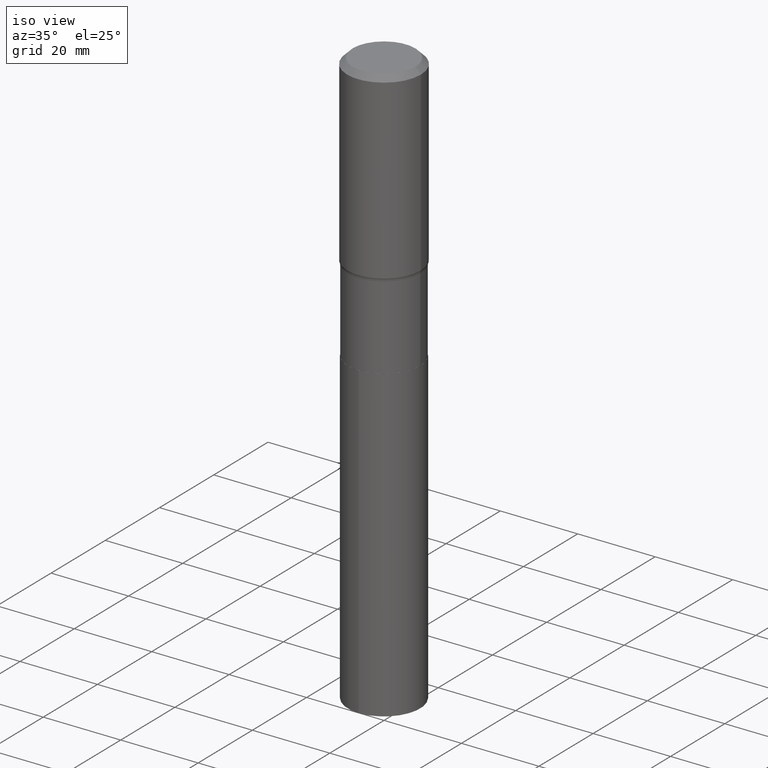
[diagram: clean part render]
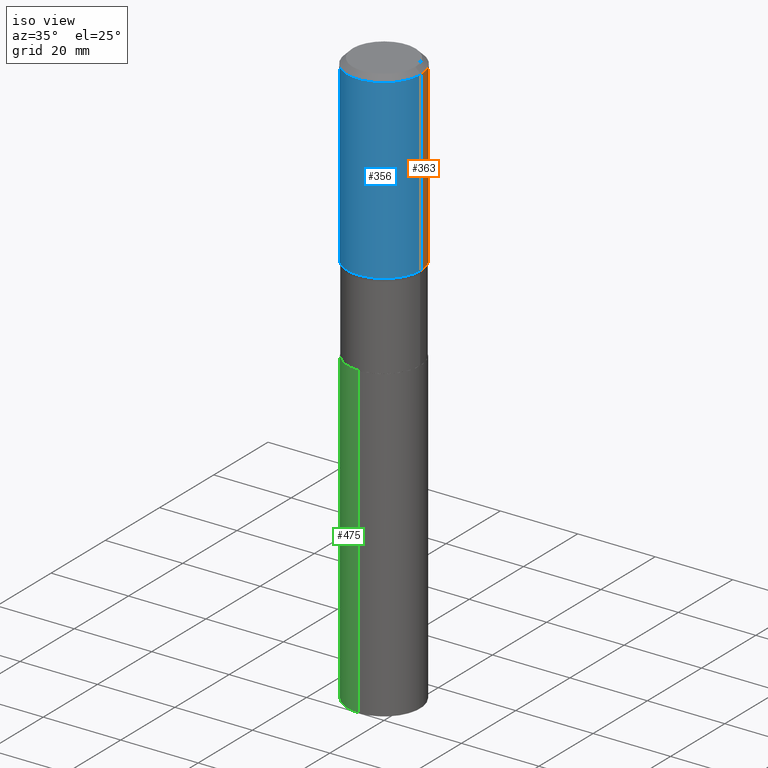
[diagram: same view with three faces highlighted in distinct colors, each labeled with its STEP entity id]
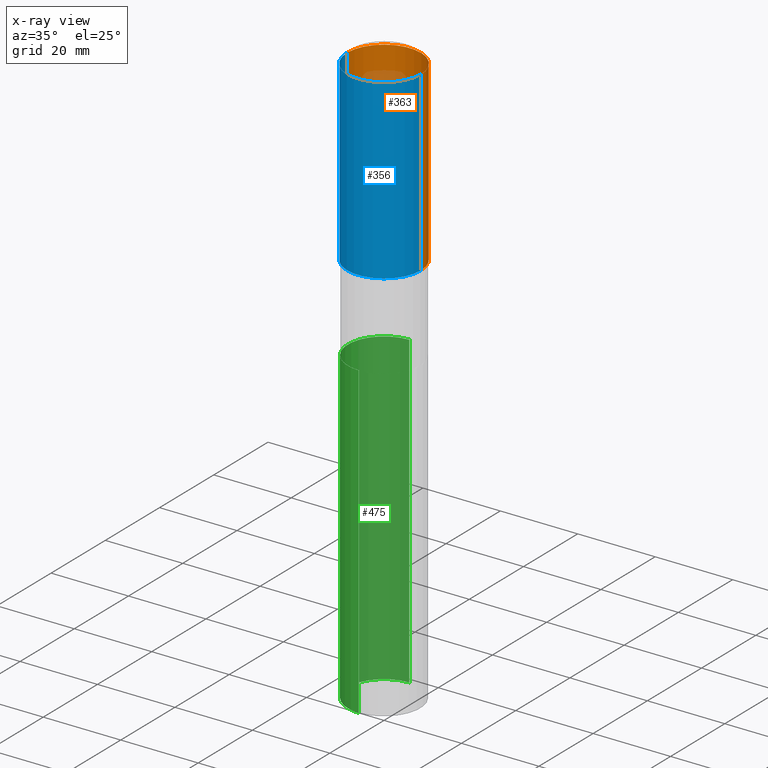
[diagram: x-ray of the same camera — body ghosted, the three highlighted faces saturated]
A machine part, iso view with three faces highlighted in distinct colors.
The next image is the same camera in x-ray (body ghosted, the three faces saturated) — at least one of them is partly hidden behind the body in this view.
Their STEP definitions:

[orange] entity #363 — the highlighted cylindrical surface (partial cylindrical patch) has radius 9.525 mm, axis along (-0, 0, 1).
#11 = AXIS2_PLACEMENT_3D ( 'NONE', #232, #270, #197 ) ;
#12 = VERTEX_POINT ( 'NONE', #240 ) ;
#17 = DIRECTION ( 'NONE',  ( 1.000000000000000000, -6.982962677686264344E-15, 0.000000000000000000 ) ) ;
#30 = AXIS2_PLACEMENT_3D ( 'NONE', #164, #373, #78 ) ;
#42 = FACE_OUTER_BOUND ( 'NONE', #379, .T. ) ;
#60 = CARTESIAN_POINT ( 'NONE',  ( -0.3750000000000000555, -6.734092147823022708E-16, -0.05625000000000037609 ) ) ;
#71 = CARTESIAN_POINT ( 'NONE',  ( 0.3750000000000001110, -2.618611004132350411E-15, 1.828566290923476483E-29 ) ) ;
#78 = DIRECTION ( 'NONE',  ( 1.000000000000000000, -6.982962677686266711E-15, 0.000000000000000000 ) ) ;
#91 = VERTEX_POINT ( 'NONE', #60 ) ;
#112 = EDGE_CURVE ( 'NONE', #12, #91, #175, .T. ) ;
#119 = EDGE_CURVE ( 'NONE', #208, #121, #453, .T. ) ;
#121 = VERTEX_POINT ( 'NONE', #290 ) ;
#137 = LINE ( 'NONE', #71, #262 ) ;
#142 = DIRECTION ( 'NONE',  ( -2.445468806185136877E-29, 3.491481338843145188E-15, 1.000000000000000000 ) ) ;
#148 = DIRECTION ( 'NONE',  ( -2.445468806185136877E-29, 3.491481338843145188E-15, 1.000000000000000000 ) ) ;
#156 = LINE ( 'NONE', #414, #351 ) ;
#164 = CARTESIAN_POINT ( 'NONE',  ( 4.538302449041883434E-29, -6.479493122455429093E-15, -1.855800588240382964 ) ) ;
#171 = CARTESIAN_POINT ( 'NONE',  ( 0.3750000000000002220, -9.098104126587783053E-15, -1.855800588240382964 ) ) ;
#175 = CIRCLE ( 'NONE', #434, 0.3750000000000000555 ) ;
#197 = DIRECTION ( 'NONE',  ( 1.000000000000000000, -6.982962677686265922E-15, 4.876176775795935793E-29 ) ) ;
#208 = VERTEX_POINT ( 'NONE', #171 ) ;
#227 = CYLINDRICAL_SURFACE ( 'NONE', #11, 0.3750000000000001110 ) ;
#228 = EDGE_CURVE ( 'NONE', #208, #12, #137, .T. ) ;
#232 = CARTESIAN_POINT ( 'NONE',  ( 0.000000000000000000, 0.000000000000000000, 0.000000000000000000 ) ) ;
#234 = ORIENTED_EDGE ( 'NONE', *, *, #430, .T. ) ;
#240 = CARTESIAN_POINT ( 'NONE',  ( 0.3750000000000000555, -2.815006829442278240E-15, -0.05625000000000037609 ) ) ;
#243 = CARTESIAN_POINT ( 'NONE',  ( 1.375576203479148549E-30, -1.963958253099282234E-16, -0.05625000000000037609 ) ) ;
#262 = VECTOR ( 'NONE', #142, 39.37007874015748143 ) ;
#270 = DIRECTION ( 'NONE',  ( -2.445468806185136597E-29, 3.491481338843145583E-15, 1.000000000000000000 ) ) ;
#290 = CARTESIAN_POINT ( 'NONE',  ( -0.3750000000000002220, -3.814957863355051818E-15, -1.855800588240382964 ) ) ;
#313 = ORIENTED_EDGE ( 'NONE', *, *, #228, .F. ) ;
#315 = ORIENTED_EDGE ( 'NONE', *, *, #119, .T. ) ;
#351 = VECTOR ( 'NONE', #148, 39.37007874015748143 ) ;
#355 = DIRECTION ( 'NONE',  ( -2.445468806185136597E-29, 3.491481338843145583E-15, 1.000000000000000000 ) ) ;
#363 = ADVANCED_FACE ( 'NONE', ( #42 ), #227, .T. ) ;
#373 = DIRECTION ( 'NONE',  ( -2.445468806185136597E-29, 3.491481338843145583E-15, 1.000000000000000000 ) ) ;
#379 = EDGE_LOOP ( 'NONE', ( #315, #234, #417, #313 ) ) ;
#414 = CARTESIAN_POINT ( 'NONE',  ( -0.3750000000000001110, 2.664535259100376486E-15, -1.844600658845590159E-29 ) ) ;
#417 = ORIENTED_EDGE ( 'NONE', *, *, #112, .F. ) ;
#430 = EDGE_CURVE ( 'NONE', #121, #91, #156, .T. ) ;
#434 = AXIS2_PLACEMENT_3D ( 'NONE', #243, #355, #17 ) ;
#453 = CIRCLE ( 'NONE', #30, 0.3750000000000002220 ) ;

[blue] entity #356 — the highlighted cylindrical surface (partial cylindrical patch) has radius 9.525 mm, axis along (-0, 0, 1).
#6 = DIRECTION ( 'NONE',  ( 1.000000000000000000, -6.982962677686265922E-15, 4.876176775795935793E-29 ) ) ;
#12 = VERTEX_POINT ( 'NONE', #240 ) ;
#19 = CIRCLE ( 'NONE', #247, 0.3750000000000000555 ) ;
#40 = CARTESIAN_POINT ( 'NONE',  ( 0.000000000000000000, 0.000000000000000000, 0.000000000000000000 ) ) ;
#41 = ORIENTED_EDGE ( 'NONE', *, *, #228, .T. ) ;
#53 = DIRECTION ( 'NONE',  ( -2.445468806185136597E-29, 3.491481338843145583E-15, 1.000000000000000000 ) ) ;
#60 = CARTESIAN_POINT ( 'NONE',  ( -0.3750000000000000555, -6.734092147823022708E-16, -0.05625000000000037609 ) ) ;
#71 = CARTESIAN_POINT ( 'NONE',  ( 0.3750000000000001110, -2.618611004132350411E-15, 1.828566290923476483E-29 ) ) ;
#79 = CIRCLE ( 'NONE', #376, 0.3750000000000002220 ) ;
#91 = VERTEX_POINT ( 'NONE', #60 ) ;
#111 = ORIENTED_EDGE ( 'NONE', *, *, #439, .T. ) ;
#114 = FACE_OUTER_BOUND ( 'NONE', #206, .T. ) ;
#121 = VERTEX_POINT ( 'NONE', #290 ) ;
#137 = LINE ( 'NONE', #71, #262 ) ;
#142 = DIRECTION ( 'NONE',  ( -2.445468806185136877E-29, 3.491481338843145188E-15, 1.000000000000000000 ) ) ;
#148 = DIRECTION ( 'NONE',  ( -2.445468806185136877E-29, 3.491481338843145188E-15, 1.000000000000000000 ) ) ;
#156 = LINE ( 'NONE', #414, #351 ) ;
#159 = DIRECTION ( 'NONE',  ( 1.000000000000000000, -6.982962677686264344E-15, 0.000000000000000000 ) ) ;
#171 = CARTESIAN_POINT ( 'NONE',  ( 0.3750000000000002220, -9.098104126587783053E-15, -1.855800588240382964 ) ) ;
#206 = EDGE_LOOP ( 'NONE', ( #423, #111, #41, #354 ) ) ;
#208 = VERTEX_POINT ( 'NONE', #171 ) ;
#220 = CARTESIAN_POINT ( 'NONE',  ( 4.538302449041883434E-29, -6.479493122455429093E-15, -1.855800588240382964 ) ) ;
#228 = EDGE_CURVE ( 'NONE', #208, #12, #137, .T. ) ;
#240 = CARTESIAN_POINT ( 'NONE',  ( 0.3750000000000000555, -2.815006829442278240E-15, -0.05625000000000037609 ) ) ;
#247 = AXIS2_PLACEMENT_3D ( 'NONE', #274, #53, #159 ) ;
#262 = VECTOR ( 'NONE', #142, 39.37007874015748143 ) ;
#274 = CARTESIAN_POINT ( 'NONE',  ( 1.375576203479148549E-30, -1.963958253099282234E-16, -0.05625000000000037609 ) ) ;
#290 = CARTESIAN_POINT ( 'NONE',  ( -0.3750000000000002220, -3.814957863355051818E-15, -1.855800588240382964 ) ) ;
#351 = VECTOR ( 'NONE', #148, 39.37007874015748143 ) ;
#354 = ORIENTED_EDGE ( 'NONE', *, *, #446, .F. ) ;
#356 = ADVANCED_FACE ( 'NONE', ( #114 ), #448, .T. ) ;
#375 = DIRECTION ( 'NONE',  ( 1.000000000000000000, -6.982962677686266711E-15, 0.000000000000000000 ) ) ;
#376 = AXIS2_PLACEMENT_3D ( 'NONE', #220, #380, #375 ) ;
#380 = DIRECTION ( 'NONE',  ( -2.445468806185136597E-29, 3.491481338843145583E-15, 1.000000000000000000 ) ) ;
#414 = CARTESIAN_POINT ( 'NONE',  ( -0.3750000000000001110, 2.664535259100376486E-15, -1.844600658845590159E-29 ) ) ;
#416 = DIRECTION ( 'NONE',  ( -2.445468806185136597E-29, 3.491481338843145583E-15, 1.000000000000000000 ) ) ;
#423 = ORIENTED_EDGE ( 'NONE', *, *, #430, .F. ) ;
#430 = EDGE_CURVE ( 'NONE', #121, #91, #156, .T. ) ;
#439 = EDGE_CURVE ( 'NONE', #121, #208, #79, .T. ) ;
#446 = EDGE_CURVE ( 'NONE', #91, #12, #19, .T. ) ;
#448 = CYLINDRICAL_SURFACE ( 'NONE', #462, 0.3750000000000001110 ) ;
#462 = AXIS2_PLACEMENT_3D ( 'NONE', #40, #416, #6 ) ;

[green] entity #475 — the highlighted cylindrical surface (partial cylindrical patch) has radius 9.3269 mm, axis along (-0, 0, 1).
#23 = EDGE_CURVE ( 'NONE', #62, #340, #279, .T. ) ;
#36 = FACE_OUTER_BOUND ( 'NONE', #265, .T. ) ;
#62 = VERTEX_POINT ( 'NONE', #464 ) ;
#85 = LINE ( 'NONE', #343, #322 ) ;
#98 = ORIENTED_EDGE ( 'NONE', *, *, #358, .F. ) ;
#106 = CYLINDRICAL_SURFACE ( 'NONE', #433, 0.3672000000000000264 ) ;
#117 = CARTESIAN_POINT ( 'NONE',  ( -2.564143895246330080E-15, -0.3672000000000096298, -2.734399999999999054 ) ) ;
#132 = VERTEX_POINT ( 'NONE', #218 ) ;
#133 = DIRECTION ( 'NONE',  ( -6.982962677686265922E-15, -1.000000000000000000, 2.975869274144077348E-15 ) ) ;
#153 = EDGE_CURVE ( 'NONE', #456, #132, #324, .T. ) ;
#154 = CARTESIAN_POINT ( 'NONE',  ( 2.609112925711154729E-15, 0.3671999999999904785, -2.734400000000001274 ) ) ;
#183 = DIRECTION ( 'NONE',  ( -2.445466253269083818E-29, 3.491484994764236272E-15, 1.000000000000000000 ) ) ;
#188 = LINE ( 'NONE', #154, #286 ) ;
#198 = ORIENTED_EDGE ( 'NONE', *, *, #153, .T. ) ;
#218 = CARTESIAN_POINT ( 'NONE',  ( -2.564143895246252377E-15, -0.3672000000000205100, -5.884222284723638730 ) ) ;
#229 = ORIENTED_EDGE ( 'NONE', *, *, #23, .F. ) ;
#248 = CARTESIAN_POINT ( 'NONE',  ( 6.686889903632637858E-29, -9.547106572932698948E-15, -2.734400000000000386 ) ) ;
#254 = CARTESIAN_POINT ( 'NONE',  ( 1.438967400471922140E-28, -2.054466381621928919E-14, -5.884222284723639618 ) ) ;
#265 = EDGE_LOOP ( 'NONE', ( #98, #198, #299, #229 ) ) ;
#279 = CIRCLE ( 'NONE', #428, 0.3672000000000000264 ) ;
#286 = VECTOR ( 'NONE', #333, 39.37007874015748143 ) ;
#299 = ORIENTED_EDGE ( 'NONE', *, *, #328, .T. ) ;
#311 = CARTESIAN_POINT ( 'NONE',  ( 2.609112925711232037E-15, 0.3671999999999793762, -5.884222284723640506 ) ) ;
#316 = AXIS2_PLACEMENT_3D ( 'NONE', #254, #183, #372 ) ;
#318 = DIRECTION ( 'NONE',  ( -2.445466253269083818E-29, 3.491484994764236272E-15, 1.000000000000000000 ) ) ;
#322 = VECTOR ( 'NONE', #455, 39.37007874015748143 ) ;
#324 = CIRCLE ( 'NONE', #316, 0.3672000000000000264 ) ;
#326 = DIRECTION ( 'NONE',  ( -2.445466253269083818E-29, 3.491484994764236272E-15, 1.000000000000000000 ) ) ;
#328 = EDGE_CURVE ( 'NONE', #132, #340, #85, .T. ) ;
#333 = DIRECTION ( 'NONE',  ( -2.445466253269083538E-29, 3.491484994764236667E-15, 1.000000000000000000 ) ) ;
#340 = VERTEX_POINT ( 'NONE', #117 ) ;
#343 = CARTESIAN_POINT ( 'NONE',  ( -2.564143895246330080E-15, -0.3672000000000096298, -2.734399999999999054 ) ) ;
#358 = EDGE_CURVE ( 'NONE', #456, #62, #188, .T. ) ;
#372 = DIRECTION ( 'NONE',  ( -6.982962677686265922E-15, -1.000000000000000000, 2.975869274144077348E-15 ) ) ;
#402 = DIRECTION ( 'NONE',  ( -6.982962677686265922E-15, -1.000000000000000000, 2.975869274144077348E-15 ) ) ;
#428 = AXIS2_PLACEMENT_3D ( 'NONE', #248, #318, #133 ) ;
#433 = AXIS2_PLACEMENT_3D ( 'NONE', #484, #326, #402 ) ;
#455 = DIRECTION ( 'NONE',  ( -2.445466253269083538E-29, 3.491484994764236667E-15, 1.000000000000000000 ) ) ;
#456 = VERTEX_POINT ( 'NONE', #311 ) ;
#464 = CARTESIAN_POINT ( 'NONE',  ( 2.609112925711232826E-15, 0.3671999999999904785, -2.734400000000001274 ) ) ;
#475 = ADVANCED_FACE ( 'NONE', ( #36 ), #106, .T. ) ;
#484 = CARTESIAN_POINT ( 'NONE',  ( 6.686889903632637858E-29, -9.547106572932698948E-15, -2.734400000000000386 ) ) ;